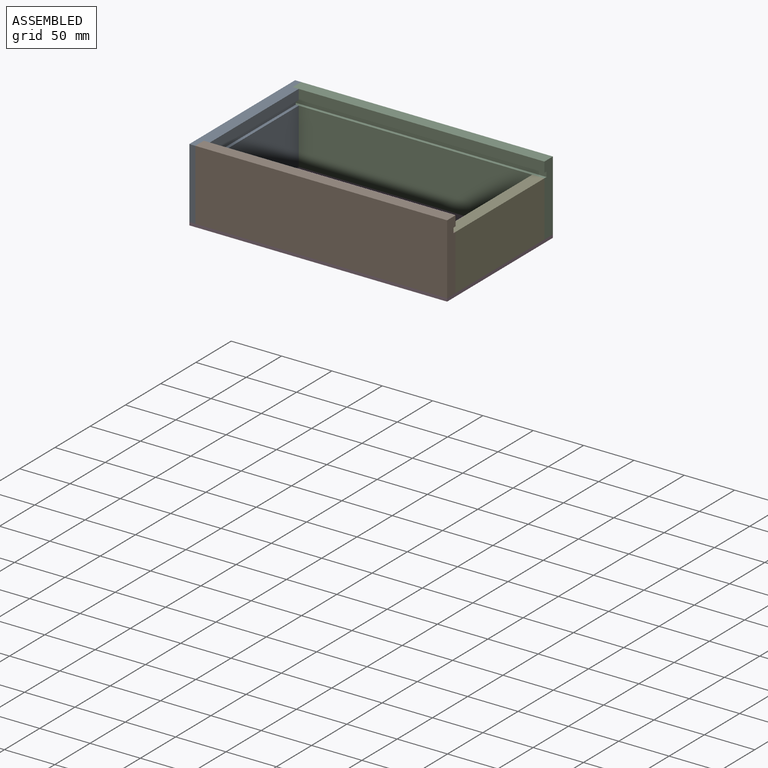
[diagram: assembled view]
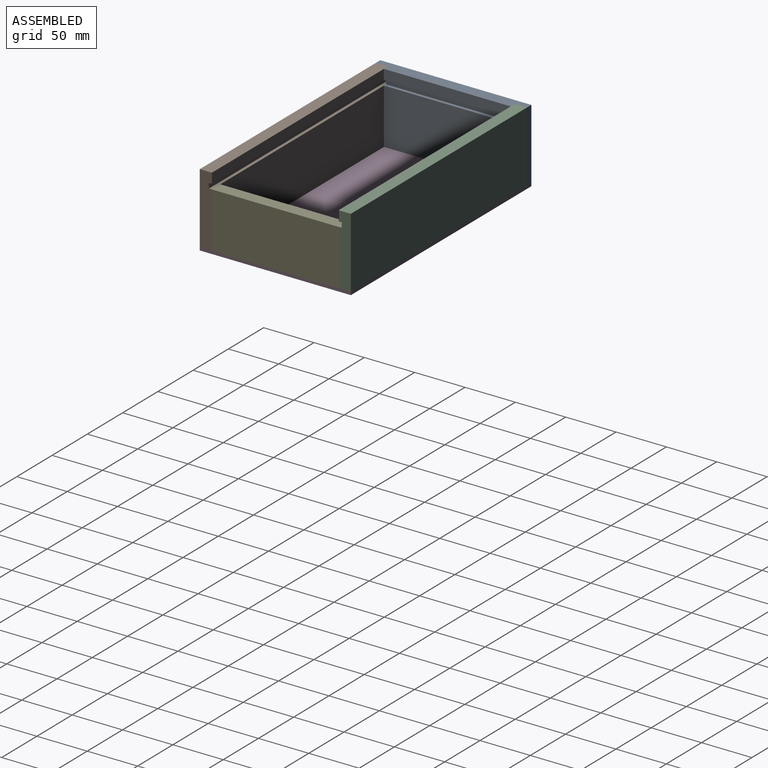
[diagram: assembled view, second angle]
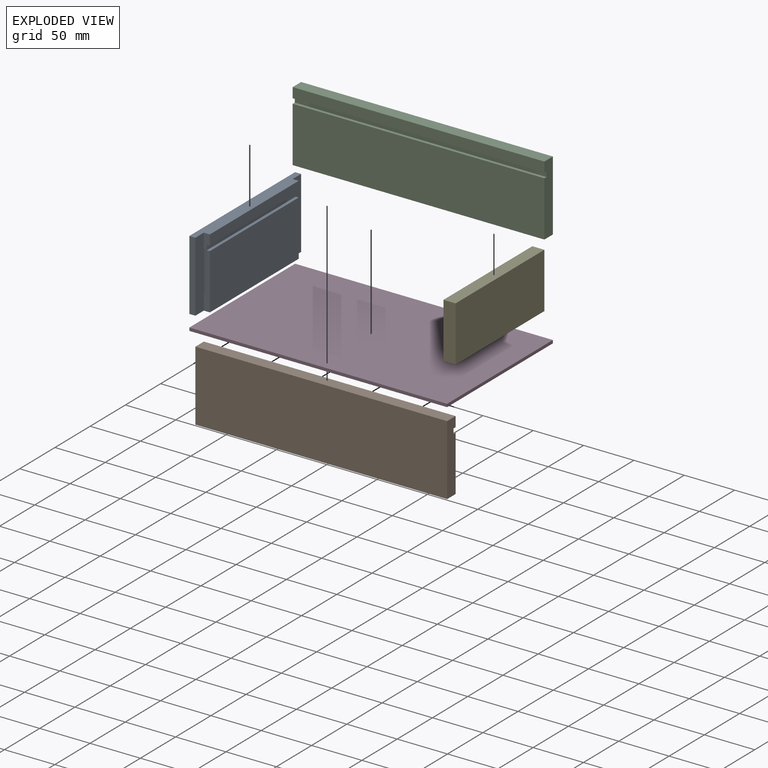
[diagram: exploded view]
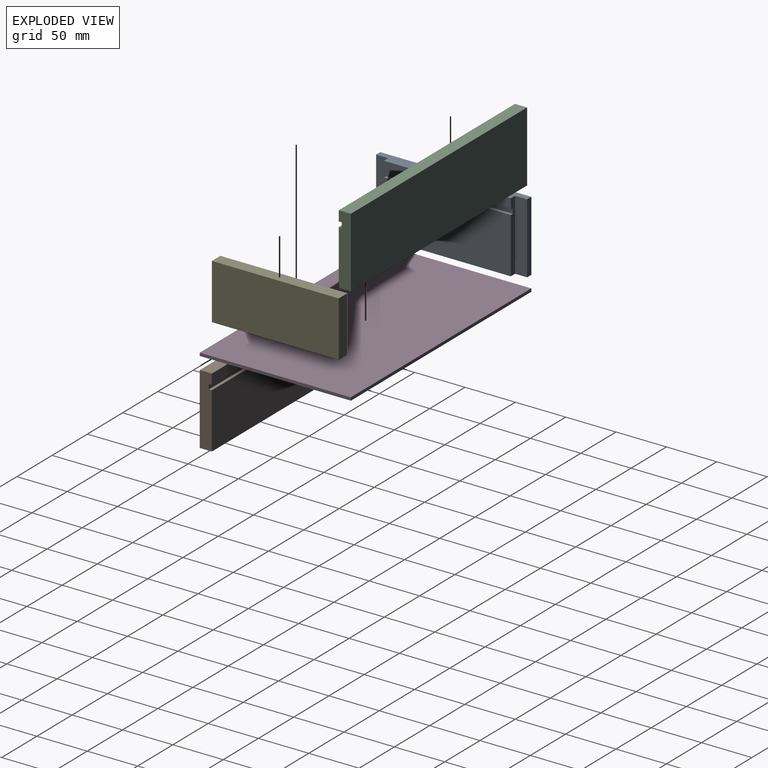
[diagram: exploded view, second angle]
ASSEMBLY  parts=5 mates=4
PART A: 14 faces, bbox 150x12x70 mm
  f0: plane 150x12mm, normal (0,0,1), area 1656mm2, adj f1,f7,f8,f9,f10,f11,f12,f13
  f1: plane 126x10mm, normal (0,-1,0), area 1260mm2, adj f0,f3,f10,f12
  f2: plane 126x55mm, normal (0,-1,0), area 6930mm2, adj f5,f6,f10,f12
  f3: plane 126x3mm, normal (0,0,-1), area 378mm2, adj f1,f4,f10,f12
  f4: plane 126x5mm, normal (0,-1,0), area 630mm2, adj f3,f5,f10,f12
  f5: plane 126x3mm, normal (0,0,1), area 378mm2, adj f2,f4,f10,f12
  f6: plane 150x12mm, normal (0,0,-1), area 1656mm2, adj f2,f7,f8,f9,f10,f11,f12,f13
  f7: plane 150x70mm, normal (0,1,0), area 10500mm2, adj f0,f6,f8,f9
  f8: plane 70x6mm, normal (1,0,0), area 420mm2, adj f0,f6,f7,f13
  f9: plane 70x6mm, normal (-1,0,0), area 420mm2, adj f0,f6,f7,f11
  f10: plane 70x6mm, normal (-1,0,0), area 405mm2, adj f0,f1,f2,f3,f4,f5,f6,f11
  f11: plane 70x12mm, normal (0,-1,0), area 840mm2, adj f0,f6,f9,f10
  f12: plane 70x6mm, normal (1,0,0), area 405mm2, adj f0,f1,f2,f3,f4,f5,f6,f13
  f13: plane 70x12mm, normal (0,-1,0), area 840mm2, adj f0,f6,f8,f12
PART B: 10 faces, bbox 250x12x70 mm
  f0: plane 250x55mm, normal (0,-1,0), area 13750mm2, adj f1,f7,f8,f9
  f1: plane 250x12mm, normal (0,0,-1), area 3000mm2, adj f0,f2,f8,f9
  f2: plane 250x70mm, normal (0,1,0), area 17500mm2, adj f1,f3,f8,f9
  f3: plane 250x12mm, normal (0,0,1), area 3000mm2, adj f2,f4,f8,f9
  f4: plane 250x10mm, normal (0,-1,0), area 2500mm2, adj f3,f5,f8,f9
  f5: plane 250x3mm, normal (0,0,-1), area 750mm2, adj f4,f6,f8,f9
  f6: plane 250x5mm, normal (0,-1,0), area 1250mm2, adj f5,f7,f8,f9
  f7: plane 250x3mm, normal (0,0,1), area 750mm2, adj f0,f6,f8,f9
  f8: plane 70x12mm, normal (1,0,0), area 825mm2, adj f0,f1,f2,f3,f4,f5,f6,f7
  f9: plane 70x12mm, normal (-1,0,0), area 825mm2, adj f0,f1,f2,f3,f4,f5,f6,f7
PART C: same geometry as B
PART D: 6 faces, bbox 256x150x3 mm
  f0: plane 150x3mm, normal (-1,0,0), area 450mm2, adj f1,f3,f4,f5
  f1: plane 256x3mm, normal (0,-1,0), area 768mm2, adj f0,f2,f4,f5
  f2: plane 150x3mm, normal (1,0,0), area 450mm2, adj f1,f3,f4,f5
  f3: plane 256x3mm, normal (0,1,0), area 768mm2, adj f0,f2,f4,f5
  f4: plane 256x150mm, normal (0,0,1), area 38400mm2, adj f0,f1,f2,f3
  f5: plane 256x150mm, normal (0,0,-1), area 38400mm2, adj f0,f1,f2,f3
PART E: 6 faces, bbox 126x12x55 mm
  f0: plane 55x12mm, normal (-1,0,0), area 660mm2, adj f1,f3,f4,f5
  f1: plane 126x12mm, normal (0,0,-1), area 1512mm2, adj f0,f2,f4,f5
  f2: plane 55x12mm, normal (1,0,0), area 660mm2, adj f1,f3,f4,f5
  f3: plane 126x12mm, normal (0,0,1), area 1512mm2, adj f0,f2,f4,f5
  f4: plane 126x55mm, normal (0,-1,0), area 6930mm2, adj f0,f1,f2,f3
  f5: plane 126x55mm, normal (0,1,0), area 6930mm2, adj f0,f1,f2,f3
PLACE A rot(axis=(0,0,1),90deg) t=(-6.45,-78.52,-16.53)mm
PLACE B rot(axis=(0,0,1),180deg) t=(249.55,-66.52,-16.53)mm
PLACE C t=(-0.45,59.48,-16.53)mm
PLACE D t=(-6.45,-78.52,-19.53)mm
PLACE E rot(axis=(0,0,1),90deg) t=(237.55,-66.52,-16.53)mm
MATE fastened E.f1 <-> C.f1  axis (0,0,1) through (249.55,59.48,-16.53)mm
MATE fastened D.f4 <-> C.f1  axis (0,0,1) through (249.55,71.48,-16.53)mm
MATE fastened A.f0 <-> C.f3  axis (0,0,1) through (-0.45,71.48,53.47)mm
MATE fastened B.f3 <-> A.f0  axis (0,0,1) through (-0.45,-66.52,53.47)mm
